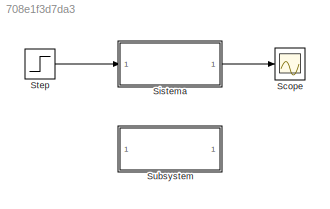
MODEL slx_708e1f3d7da3
KIND model
CONFIG AbsTol = auto
CONFIG EnableMultiTasking = on
CONFIG FixedStep = auto
CONFIG MaxStep = auto
CONFIG MinStep = auto
CONFIG RelTol = 1e-3
CONFIG SampleTimeConstraint = Unconstrained
CONFIG SolverName = ode45
CONFIG StartTime = 0.0
CONFIG StopTime = 10.0
BLOCK [Scope] Scope
  Floating = off
  NumInputPorts = 1
  ScopeSpecificationString = C++SS(StrPVP('Location','[1, 49, 1921, 1031]'),StrPVP('Open','off'),MxPVP('AxesTitles',54,'struct(''axes1'',''%<SignalLabel>'')'),MxPVP('ScopeGraphics',57,'struct(''FigureColor'',''[0.5 0.5 0.5]'',''AxesColor'',''[0 0 0]'',''AxesTickColor'',''[1 1 1]'',''LineColors'',''[1 1 0;1 0 1;0 1 1;1 0 0;0 1 0;0 0 1]'',''LineStyles'',''-|-|-|-|-|-'',''LineWidths'',''[0.5 0.5 0.5 0.5 0.5 0.5]'',''MarkerStyles...<+163ch>
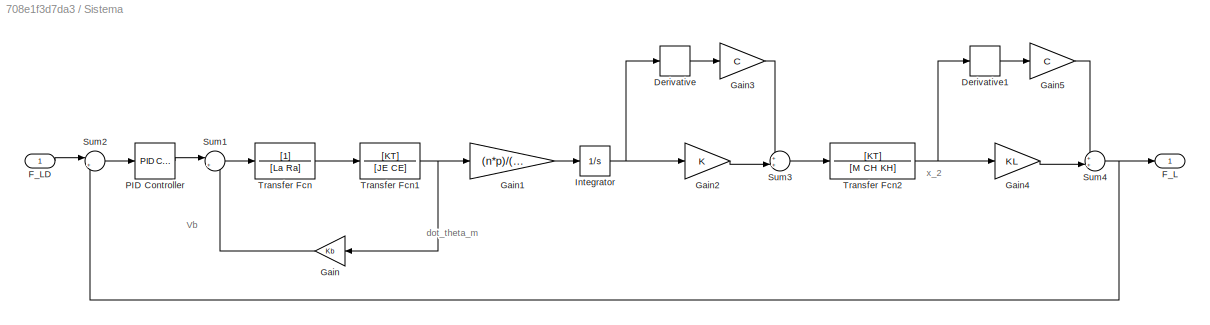
BLOCK [SubSystem] Sistema 
BLOCK [Derivative] Sistema /Derivative
BLOCK [Derivative] Sistema /Derivative1
BLOCK [Outport] Sistema /F_L
BLOCK [Inport] Sistema /F_LD
BLOCK [Gain] Sistema /Gain
  Gain = Kb
BLOCK [Gain] Sistema /Gain1
  Gain = (n*p)/(2*pi)
BLOCK [Gain] Sistema /Gain2
  Gain = K
BLOCK [Gain] Sistema /Gain3
  Gain = C
BLOCK [Gain] Sistema /Gain4
  Gain = KL
BLOCK [Gain] Sistema /Gain5
  Gain = C
BLOCK [Integrator] Sistema /Integrator
BLOCK [Reference] Sistema /PID Controller  REF=slpidlib/PID Controller
  SourceBlock = slpidlib/PID Controller
  SourceType = PID 1dof
BLOCK [Sum] Sistema /Sum1
  Inputs = |+-
BLOCK [Sum] Sistema /Sum2
  Inputs = |+-
BLOCK [Sum] Sistema /Sum3
  Inputs = ++|
  NameLocation = top
BLOCK [Sum] Sistema /Sum4
  Inputs = ++|
  NameLocation = top
BLOCK [TransferFcn] Sistema /Transfer Fcn
  Denominator = [La Ra]
BLOCK [TransferFcn] Sistema /Transfer Fcn1
  Denominator = [JE CE]
  Numerator = [KT]
BLOCK [TransferFcn] Sistema /Transfer Fcn2
  Denominator = [M CH KH]
  Numerator = [KT]
BLOCK [Step] Step
  SampleTime = 0
  Time = 0
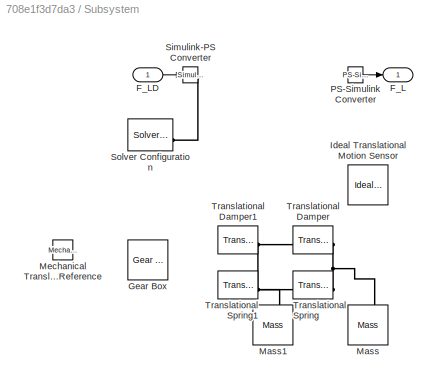
BLOCK [SubSystem] Subsystem
BLOCK [Outport] Subsystem/F_L
BLOCK [Inport] Subsystem/F_LD
BLOCK [Reference] Subsystem/Gear Box  REF=fl_lib/Mechanical/Mechanisms/Gear Box
  SourceBlock = fl_lib/Mechanical/Mechanisms/Gear Box
  SourceType = Gear Box
BLOCK [Reference] Subsystem/Ideal Translational Motion Sensor  REF=fl_lib/Mechanical/Mechanical Sensors/Ideal Translational
Motion Sensor
  SourceBlock = fl_lib/Mechanical/Mechanical Sensors/Ideal Translational\nMotion Sensor
  SourceType = Ideal Translational\nMotion Sensor
BLOCK [Reference] Subsystem/Mass  REF=fl_lib/Mechanical/Translational
Elements/Mass
  NameLocation = right
  SourceBlock = fl_lib/Mechanical/Translational\nElements/Mass
  SourceType = Mass
BLOCK [Reference] Subsystem/Mass1  REF=fl_lib/Mechanical/Translational
Elements/Mass
  NameLocation = right
  SourceBlock = fl_lib/Mechanical/Translational\nElements/Mass
  SourceType = Mass
BLOCK [Reference] Subsystem/Mechanical Translational Reference  REF=fl_lib/Mechanical/Translational
Elements/Mechanical
Translational
Reference
  NameLocation = right
  SourceBlock = fl_lib/Mechanical/Translational\nElements/Mechanical\nTranslational\nReference
  SourceType = Mechanical\nTranslational\nReference
BLOCK [Reference] Subsystem/PS-Simulink Converter  REF=nesl_utility/PS-Simulink
Converter
  SourceBlock = nesl_utility/PS-Simulink\nConverter
  SourceType = PS-Simulink\nConverter
BLOCK [Reference] Subsystem/Simulink-PS Converter  REF=nesl_utility/Simulink-PS
Converter
  SourceBlock = nesl_utility/Simulink-PS\nConverter
  SourceType = Simulink-PS\nConverter
BLOCK [Reference] Subsystem/Solver Configuration  REF=nesl_utility/Solver
Configuration
  SourceBlock = nesl_utility/Solver\nConfiguration
  SourceType = Solver\nConfiguration
BLOCK [Reference] Subsystem/Translational Damper  REF=fl_lib/Mechanical/Translational
Elements/Translational Damper
  SourceBlock = fl_lib/Mechanical/Translational\nElements/Translational Damper
  SourceType = Translational Damper
BLOCK [Reference] Subsystem/Translational Damper1  REF=fl_lib/Mechanical/Translational
Elements/Translational Damper
  SourceBlock = fl_lib/Mechanical/Translational\nElements/Translational Damper
  SourceType = Translational Damper
BLOCK [Reference] Subsystem/Translational Spring  REF=fl_lib/Mechanical/Translational
Elements/Translational Spring
  SourceBlock = fl_lib/Mechanical/Translational\nElements/Translational Spring
  SourceType = Translational Spring
BLOCK [Reference] Subsystem/Translational Spring1  REF=fl_lib/Mechanical/Translational
Elements/Translational Spring
  SourceBlock = fl_lib/Mechanical/Translational\nElements/Translational Spring
  SourceType = Translational Spring
ANNOTATION Sistema : Vb
ANNOTATION Sistema : dot_theta_m
ANNOTATION Sistema : x_2
LINE Sistema /Derivative1:1 -> Sistema /Gain5:1
LINE Sistema /Derivative:1 -> Sistema /Gain3:1
LINE Sistema /F_LD:1 -> Sistema /Sum2:1
LINE Sistema /Gain1:1 -> Sistema /Integrator:1
LINE Sistema /Gain2:1 -> Sistema /Sum3:2
LINE Sistema /Gain3:1 -> Sistema /Sum3:1
LINE Sistema /Gain4:1 -> Sistema /Sum4:2
LINE Sistema /Gain5:1 -> Sistema /Sum4:1
LINE Sistema /Gain:1 -> Sistema /Sum1:2
NET Sistema /Integrator:1 -> Sistema /Derivative:1, Sistema /Gain2:1
LINE Sistema /PID Controller:1 -> Sistema /Sum1:1
LINE Sistema /Sum1:1 -> Sistema /Transfer Fcn:1
LINE Sistema /Sum2:1 -> Sistema /PID Controller:1
LINE Sistema /Sum3:1 -> Sistema /Transfer Fcn2:1
NET Sistema /Sum4:1 -> Sistema /F_L:1, Sistema /Sum2:2
NET Sistema /Transfer Fcn1:1 -> Sistema /Gain1:1, Sistema /Gain:1
NET Sistema /Transfer Fcn2:1 -> Sistema /Derivative1:1, Sistema /Gain4:1
LINE Sistema /Transfer Fcn:1 -> Sistema /Transfer Fcn1:1
LINE Sistema :1 -> Scope:1
LINE Step:1 -> Sistema :1
LINE Subsystem/F_LD:1 -> Subsystem/Simulink-PS Converter:1
LINE Subsystem/PS-Simulink Converter:1 -> Subsystem/F_L:1
PNET net1: Subsystem/Mass1:LConn1 -- Subsystem/Translational Damper1:RConn1 -- Subsystem/Translational Damper:LConn1 -- Subsystem/Translational Spring1:RConn1 -- Subsystem/Translational Spring:LConn1
PNET net2: Subsystem/Mass:LConn1 -- Subsystem/Translational Damper:RConn1 -- Subsystem/Translational Spring:RConn1
PLINE Subsystem/Simulink-PS Converter:RConn1 -- Subsystem/Solver Configuration:RConn1
note: NET lines group one-source signal fan-out (src -> all destinations, sorted); 1:1 wires keep LINE; PNET lines group multi-terminal physical nets as a canonical sorted terminal list (undirected conserving connections); 2-terminal nets keep the pairwise PLINE form
